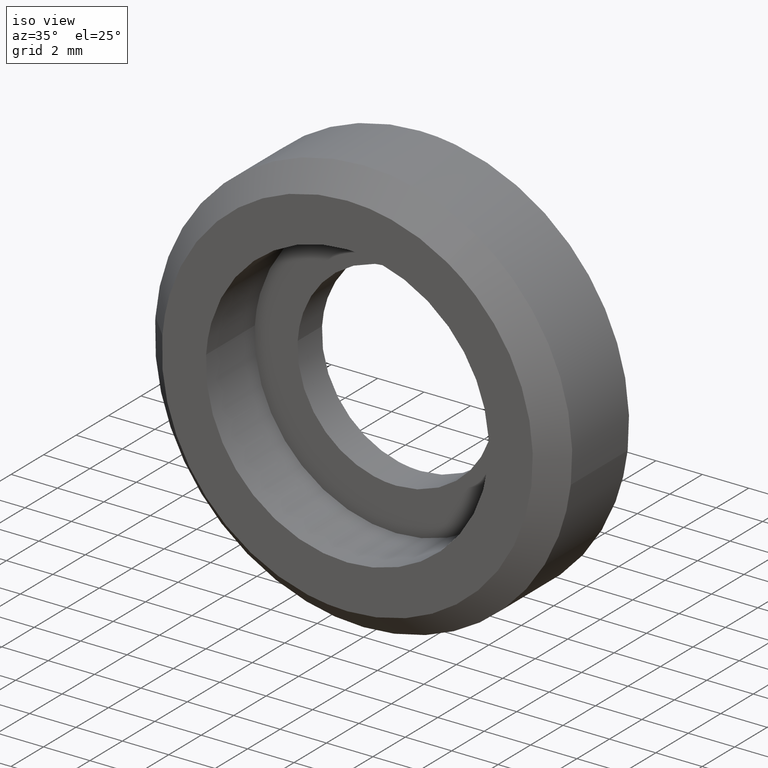
[diagram: clean part render]
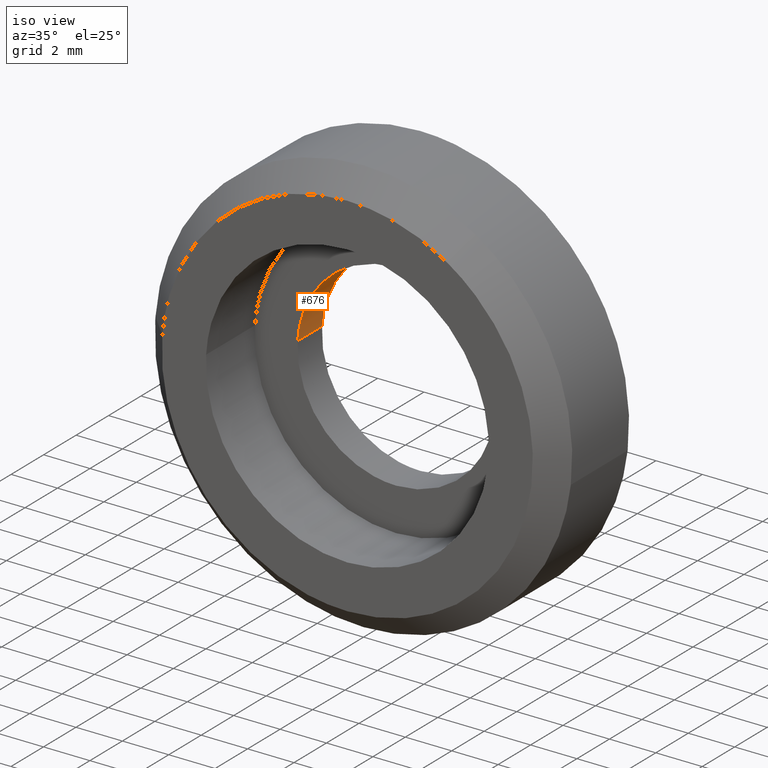
[diagram: same view with one face highlighted and labeled with its STEP entity id]
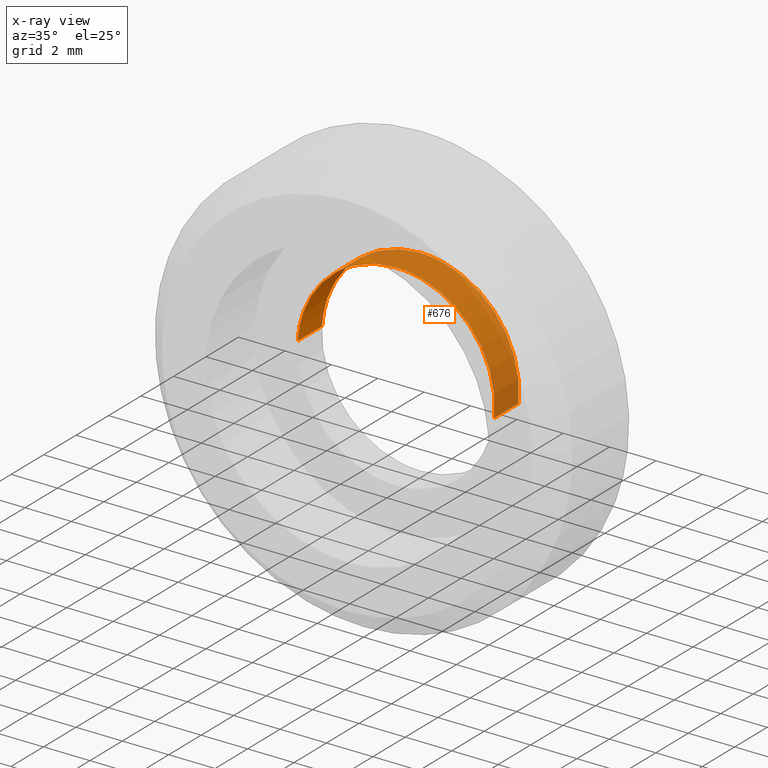
[diagram: x-ray of the same camera — body ghosted, the highlighted face saturated]
A machine part, iso view. The second image highlights one B-rep face of the part: STEP entity #676.
The next image is the same camera in x-ray: the body ghosted, the highlighted face saturated — about 82% of this face is hidden behind the body in this view.
In plain terms, the highlighted face is a freeform B-spline surface patch.
Its self-contained STEP definition (entity closure, byte-faithful):
#574=CARTESIAN_POINT('',(4.220290487045583,1.537500000000001,-0.501645497291223));
#575=CARTESIAN_POINT('',(4.234647365656575,1.537500000000000,-0.380862596711405));
#576=CARTESIAN_POINT('',(4.242072893292935,1.537500000000000,-0.259456293023142));
#577=CARTESIAN_POINT('',(4.501529186316078,1.537500000000000,3.982616600269792));
#578=CARTESIAN_POINT('',(0.259456293023143,1.537500000000000,4.242072893292934));
#579=CARTESIAN_POINT('',(-3.982616600269791,1.537500000000000,4.501529186316076));
#580=CARTESIAN_POINT('',(-4.242072893292933,1.537500000000000,0.259456293023142));
#581=CARTESIAN_POINT('',(4.220290487045583,-0.038437500000000,-0.501645497291223));
#582=CARTESIAN_POINT('',(4.234647365656575,-0.038437500000000,-0.380862596711405));
#583=CARTESIAN_POINT('',(4.242072893292935,-0.038437500000000,-0.259456293023142));
#584=CARTESIAN_POINT('',(4.501529186316078,-0.038437500000000,3.982616600269792));
#585=CARTESIAN_POINT('',(0.259456293023143,-0.038437500000000,4.242072893292934));
#586=CARTESIAN_POINT('',(-3.982616600269791,-0.038437500000000,4.501529186316076));
#587=CARTESIAN_POINT('',(-4.242072893292933,-0.038437500000000,0.259456293023142));
#595=(BOUNDED_SURFACE()B_SPLINE_SURFACE(2,1,((#574,#581),(#575,#582),(#576,#583),(#577,#584),(#578,#585),(#579,#586),(#580,#587)),.UNSPECIFIED.,.F.,.F.,.U.)B_SPLINE_SURFACE_WITH_KNOTS((3,2,2,3),(2,2),(0.0,0.281665222413705,7.323295782756321,14.364926343098940),(0.0,1.0),.UNSPECIFIED.)GEOMETRIC_REPRESENTATION_ITEM()RATIONAL_B_SPLINE_SURFACE(((0.977505800795127,0.977505800795127),(0.988284271247462,0.988284271247462),(1.0,1.0),(0.707106781186548,0.707106781186548),(1.0,1.0),(0.707106781186548,0.707106781186548),(1.0,1.0)))REPRESENTATION_ITEM('')SURFACE());
#596=CARTESIAN_POINT('',(4.220291154128550,-7.903548E-014,-0.501639885129145));
#597=VERTEX_POINT('',#596);
#598=CARTESIAN_POINT('',(9.184548E-016,0.0,4.250000000000000));
#599=VERTEX_POINT('',#598);
#600=CARTESIAN_POINT('',(4.220291154128550,-7.903548E-014,-0.501639885129145));
#601=CARTESIAN_POINT('',(4.250000000000001,0.0,-0.251699672774608));
#602=CARTESIAN_POINT('',(4.250000000000001,0.0,0.0));
#603=CARTESIAN_POINT('',(4.250000000000002,0.0,4.249999999999999));
#604=CARTESIAN_POINT('',(9.184548E-016,0.0,4.250000000000000));
#612=(BOUNDED_CURVE()B_SPLINE_CURVE(2,(#600,#601,#602,#603,#604),.UNSPECIFIED.,.F.,.U.)B_SPLINE_CURVE_WITH_KNOTS((3,2,3),(0.229562698256975,0.250000000000000,0.500000000000000),.UNSPECIFIED.)CURVE()GEOMETRIC_REPRESENTATION_ITEM()RATIONAL_B_SPLINE_CURVE((0.956027194690565,0.976056211634495,1.0,0.707106781186548,1.0))REPRESENTATION_ITEM(''));
#613=EDGE_CURVE('',#597,#599,#612,.T.);
#614=ORIENTED_EDGE('',*,*,#613,.T.);
#615=CARTESIAN_POINT('',(-4.242073260675592,-7.501291E-014,0.259450286230192));
#616=VERTEX_POINT('',#615);
#617=CARTESIAN_POINT('',(9.184548E-016,0.0,4.250000000000000));
#618=CARTESIAN_POINT('',(-3.998006456117297,0.0,4.250000000000000));
#619=CARTESIAN_POINT('',(-4.242073260675592,-7.501291E-014,0.259450286230192));
#627=(BOUNDED_CURVE()B_SPLINE_CURVE(2,(#617,#618,#619),.UNSPECIFIED.,.F.,.U.)B_SPLINE_CURVE_WITH_KNOTS((3,3),(0.500000000000000,0.739333206568988),.UNSPECIFIED.)CURVE()GEOMETRIC_REPRESENTATION_ITEM()RATIONAL_B_SPLINE_CURVE((1.0,0.719603707036256,0.976072565313075))REPRESENTATION_ITEM(''));
#628=EDGE_CURVE('',#599,#616,#627,.T.);
#629=ORIENTED_EDGE('',*,*,#628,.T.);
#630=CARTESIAN_POINT('',(-4.242073256140719,1.500000000000000,0.259450360378121));
#631=VERTEX_POINT('',#630);
#632=CARTESIAN_POINT('',(-4.242073256140719,1.500000000000000,0.259450360378121));
#633=CARTESIAN_POINT('',(-4.242073260675592,-7.501291E-014,0.259450286230192));
#634=QUASI_UNIFORM_CURVE('',1,(#632,#633),.UNSPECIFIED.,.F.,.U.);
#635=EDGE_CURVE('',#631,#616,#634,.T.);
#636=ORIENTED_EDGE('',*,*,#635,.F.);
#637=CARTESIAN_POINT('',(9.184548E-016,1.500000000000000,4.250000000000000));
#638=VERTEX_POINT('',#637);
#639=CARTESIAN_POINT('',(9.184548E-016,1.500000000000000,4.250000000000000));
#640=CARTESIAN_POINT('',(-3.998006386104877,1.500000000000000,4.250000000000000));
#641=CARTESIAN_POINT('',(-4.242073256140719,1.500000000000000,0.259450360378121));
#649=(BOUNDED_CURVE()B_SPLINE_CURVE(2,(#639,#640,#641),.UNSPECIFIED.,.F.,.U.)B_SPLINE_CURVE_WITH_KNOTS((3,3),(0.500000000000000,0.739333203553012),.UNSPECIFIED.)CURVE()GEOMETRIC_REPRESENTATION_ITEM()RATIONAL_B_SPLINE_CURVE((1.0,0.719603710569692,0.976072558849249))REPRESENTATION_ITEM(''));
#650=EDGE_CURVE('',#638,#631,#649,.T.);
#651=ORIENTED_EDGE('',*,*,#650,.F.);
#652=CARTESIAN_POINT('',(4.220291145894166,1.500000000000000,-0.501639954405705));
#653=VERTEX_POINT('',#652);
#654=CARTESIAN_POINT('',(4.220291145894166,1.500000000000000,-0.501639954405705));
#655=CARTESIAN_POINT('',(4.250000000000001,1.500000000000000,-0.251699707779066));
#656=CARTESIAN_POINT('',(4.250000000000001,1.500000000000000,0.0));
#657=CARTESIAN_POINT('',(4.250000000000002,1.500000000000000,4.249999999999999));
#658=CARTESIAN_POINT('',(9.184548E-016,1.500000000000000,4.250000000000000));
#666=(BOUNDED_CURVE()B_SPLINE_CURVE(2,(#654,#655,#656,#657,#658),.UNSPECIFIED.,.F.,.U.)B_SPLINE_CURVE_WITH_KNOTS((3,2,3),(0.229562695482767,0.250000000000000,0.500000000000000),.UNSPECIFIED.)CURVE()GEOMETRIC_REPRESENTATION_ITEM()RATIONAL_B_SPLINE_CURVE((0.956027189252991,0.976056208384307,1.0,0.707106781186548,1.0))REPRESENTATION_ITEM(''));
#667=EDGE_CURVE('',#653,#638,#666,.T.);
#668=ORIENTED_EDGE('',*,*,#667,.F.);
#669=CARTESIAN_POINT('',(4.220291145894166,1.500000000000000,-0.501639954405705));
#670=CARTESIAN_POINT('',(4.220291154128550,-7.903548E-014,-0.501639885129145));
#671=QUASI_UNIFORM_CURVE('',1,(#669,#670),.UNSPECIFIED.,.F.,.U.);
#672=EDGE_CURVE('',#653,#597,#671,.T.);
#673=ORIENTED_EDGE('',*,*,#672,.T.);
#674=EDGE_LOOP('',(#614,#629,#636,#651,#668,#673));
#675=FACE_OUTER_BOUND('',#674,.T.);
#676=ADVANCED_FACE('',(#675),#595,.F.);